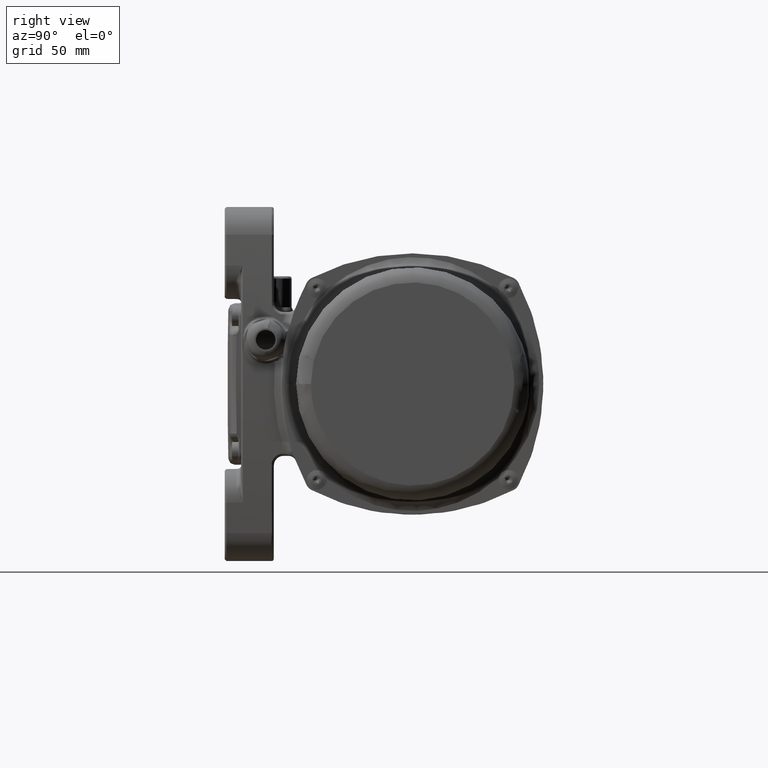
[diagram: clean part render]
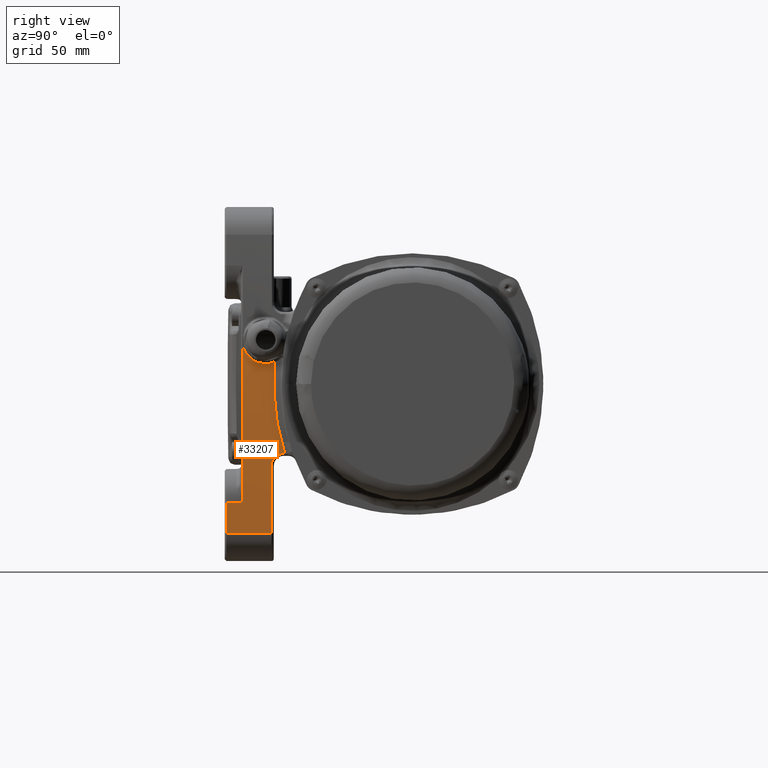
[diagram: same view with one face highlighted and labeled with its STEP entity id]
A machine part, right view. The second image highlights one B-rep face of the part: STEP entity #33207.
In plain terms, the highlighted cylindrical surface (partial cylindrical patch) has radius 1177.39 mm, axis along (-0, -1, -0).
Its self-contained STEP definition (entity closure, byte-faithful):
#73 = ORIENTED_EDGE ( 'NONE', *, *, #29983, .T. ) ;
#565 = CARTESIAN_POINT ( 'NONE',  ( 71.97014569181622800, 30.25408934805045600, -8.948182707814032400 ) ) ;
#570 = VERTEX_POINT ( 'NONE', #26577 ) ;
#681 = ORIENTED_EDGE ( 'NONE', *, *, #11822, .T. ) ;
#1027 = CARTESIAN_POINT ( 'NONE',  ( 71.20637620828320300, 32.89726016403100300, -43.22259752297990300 ) ) ;
#1286 = LINE ( 'NONE', #93497, #43908 ) ;
#1430 = CARTESIAN_POINT ( 'NONE',  ( 71.92334498826373600, 30.19751902385517900, 13.43656176734002000 ) ) ;
#2672 = CARTESIAN_POINT ( 'NONE',  ( 71.89894971271012000, 30.86275980810307500, -15.42813666770175700 ) ) ;
#3238 = CARTESIAN_POINT ( 'NONE',  ( 71.12097451912690400, 30.03169329687185000, -45.48967643393429900 ) ) ;
#3456 = AXIS2_PLACEMENT_3D ( 'NONE', #26343, #118518, #41360 ) ;
#3750 = CARTESIAN_POINT ( 'NONE',  ( 71.89267199621946200, 15.63158721638652300, 15.90046217338786300 ) ) ;
#4894 = CARTESIAN_POINT ( 'NONE',  ( 71.99933484515870000, 30.00566129381051200, -1.260244012328713500 ) ) ;
#5620 = DIRECTION ( 'NONE',  ( 1.942890293094024900E-016, 1.000000000000000000, 2.651940049159189700E-017 ) ) ;
#5864 = CARTESIAN_POINT ( 'NONE',  ( 71.92671559141999200, 20.56688521544164800, 13.13862833114919800 ) ) ;
#6391 = B_SPLINE_CURVE_WITH_KNOTS ( 'NONE', 3,
 ( #64855, #60582, #56362, #47767, #43561, #88460, #116341, #69153, #101327, #73475, #30609, #32809, #39195, #2672, #107828, #13455, #565, #77693, #120688, #105619, #4894, #84219, #131429, #62765, #129235, #15655 ),
 .UNSPECIFIED., .F., .F.,
 ( 4, 1, 1, 1, 2, 2, 1, 1, 1, 2, 2, 1, 1, 1, 1, 2, 2, 4 ),
 ( 0.0000000000000000000, 0.1250000000000004700, 0.1875000000000008300, 0.2187500000000008300, 0.2343750000000007800, 0.2500000000000007200, 0.3750000000000004400, 0.4375000000000002800, 0.4687500000000001700, 0.4843750000000001100, 0.5000000000000000000, 0.6250000000000001100, 0.6875000000000001100, 0.7187500000000001100, 0.7343750000000001100, 0.7421875000000001100, 0.7500000000000001100, 1.000000000000000000 ),
 .UNSPECIFIED. ) ;
#9668 = CARTESIAN_POINT ( 'NONE',  ( 70.97665896751969700, 28.54851451595179800, -49.08087049549579500 ) ) ;
#11822 = EDGE_CURVE ( 'NONE', #15925, #125845, #54744, .T. ) ;
#13455 = CARTESIAN_POINT ( 'NONE',  ( 71.93614411651022100, 30.54434556485648500, -12.48644543022362700 ) ) ;
#14015 = CARTESIAN_POINT ( 'NONE',  ( 71.18921465286288700, 32.03064530407679900, -43.68738105284980100 ) ) ;
#15184 = CARTESIAN_POINT ( 'NONE',  ( -1105.392857142863900, 10.99999999999974100, 5.794760148823299900E-014 ) ) ;
#15655 = CARTESIAN_POINT ( 'NONE',  ( 71.92100112256261500, 30.67403901402375200, 13.63888838288362100 ) ) ;
#15925 = VERTEX_POINT ( 'NONE', #78978 ) ;
#15994 = EDGE_CURVE ( 'NONE', #125845, #72918, #59569, .T. ) ;
#16416 = EDGE_CURVE ( 'NONE', #45019, #27990, #6391, .T. ) ;
#16498 = CARTESIAN_POINT ( 'NONE',  ( 71.93175029653478700, 22.58284795750611500, 12.67727615283605000 ) ) ;
#18058 = LINE ( 'NONE', #52271, #26866 ) ;
#18726 = CARTESIAN_POINT ( 'NONE',  ( 71.85399532308365200, 13.19060541332916800, 18.54652633090744400 ) ) ;
#19306 = DIRECTION ( 'NONE',  ( 1.942890293094024900E-016, 1.000000000000000000, 2.651940049159189700E-017 ) ) ;
#19313 = VERTEX_POINT ( 'NONE', #33896 ) ;
#20443 = CARTESIAN_POINT ( 'NONE',  ( 69.76031444216370400, 30.00000000000000000, -72.58762542394399000 ) ) ;
#20916 = CARTESIAN_POINT ( 'NONE',  ( 71.93073421754361600, 22.07828818048603000, 12.77169679114073000 ) ) ;
#22646 = CARTESIAN_POINT ( 'NONE',  ( 71.92100112256261500, 30.67403901402375200, 13.63888838288362100 ) ) ;
#23025 = CARTESIAN_POINT ( 'NONE',  ( 71.88806010398450000, 15.24446272387057300, 16.23916341736295600 ) ) ;
#23778 = DIRECTION ( 'NONE',  ( 1.942890293094024900E-016, 1.000000000000000000, 2.651940049159189700E-017 ) ) ;
#26191 = VERTEX_POINT ( 'NONE', #35995 ) ;
#26343 = CARTESIAN_POINT ( 'NONE',  ( -1105.392857142863900, 30.00000000000000000, 5.845147009757330300E-014 ) ) ;
#26577 = CARTESIAN_POINT ( 'NONE',  ( 70.93514042025650200, 28.50000000000000000, -50.06378132118450000 ) ) ;
#26866 = VECTOR ( 'NONE', #39472, 1000.000000000000000 ) ;
#27990 = VERTEX_POINT ( 'NONE', #22646 ) ;
#28958 = CARTESIAN_POINT ( 'NONE',  ( 71.21325191434269200, 33.34822016884989900, -43.03502048798829800 ) ) ;
#29983 = EDGE_CURVE ( 'NONE', #72918, #19313, #1286, .T. ) ;
#30249 = B_SPLINE_CURVE_WITH_KNOTS ( 'NONE', 3,
 ( #58941, #103988, #86784, #129795, #44019, #50433, #28958, #1027, #76025, #35383, #14015, #88927, #95454, #67510, #3238, #110410, #114703, #52538, #48241, #56819, #78257, #9668, #108303, #89014 ),
 .UNSPECIFIED., .F., .F.,
 ( 4, 2, 2, 2, 2, 2, 2, 2, 2, 2, 2, 4 ),
 ( 0.0000000000000000000, 0.1249999999999998300, 0.1874999999999989500, 0.2499999999999995300, 0.3124999999999993900, 0.3749999999999993300, 0.4999999999999991100, 0.6249999999999997800, 0.7499999999999995600, 0.8124999999999998900, 0.8749999999999998900, 1.000000000000000000 ),
 .UNSPECIFIED. ) ;
#30609 = CARTESIAN_POINT ( 'NONE',  ( 71.84868283213079100, 31.29369412691335100, -18.93903565899990600 ) ) ;
#31492 = EDGE_CURVE ( 'NONE', #27990, #26191, #46537, .T. ) ;
#32330 = ORIENTED_EDGE ( 'NONE', *, *, #65559, .F. ) ;
#32809 = CARTESIAN_POINT ( 'NONE',  ( 71.87906728439152500, 31.03309167548489000, -16.89247913098931500 ) ) ;
#33207 = ADVANCED_FACE ( 'NONE', ( #39140 ), #84168, .T. ) ;
#33896 = CARTESIAN_POINT ( 'NONE',  ( 68.44412770809570600, 28.50000000000000000, -91.43671607753690000 ) ) ;
#35383 = CARTESIAN_POINT ( 'NONE',  ( 71.19395786379661200, 32.24356121361150000, -43.55938792297620000 ) ) ;
#35995 = CARTESIAN_POINT ( 'NONE',  ( 71.77149304903640800, 10.99999999999986100, 23.19553164549699900 ) ) ;
#36457 = CARTESIAN_POINT ( 'NONE',  ( -1105.392857142863900, 0.9999999999997649700, 5.768240748331709300E-014 ) ) ;
#39140 = FACE_OUTER_BOUND ( 'NONE', #82583, .T. ) ;
#39195 = CARTESIAN_POINT ( 'NONE',  ( 71.89112561343617400, 30.92977636158888900, -16.01405119772174100 ) ) ;
#39472 = DIRECTION ( 'NONE',  ( 1.942890293094024900E-016, 1.000000000000000000, 2.651940049159189700E-017 ) ) ;
#40050 = CARTESIAN_POINT ( 'NONE',  ( 71.93383248676993000, 24.88956693550059300, 12.48222655152623900 ) ) ;
#40947 = EDGE_CURVE ( 'NONE', #26191, #15925, #84401, .T. ) ;
#41360 = DIRECTION ( 'NONE',  ( 1.885900730397318900E-016, -1.178687956498324300E-017, -1.000000000000000000 ) ) ;
#42966 = DIRECTION ( 'NONE',  ( 1.885900730397318900E-016, -1.141853957857751600E-017, -1.000000000000000000 ) ) ;
#43015 = EDGE_CURVE ( 'NONE', #99993, #45019, #18058, .T. ) ;
#43561 = CARTESIAN_POINT ( 'NONE',  ( 71.59645852602641000, 33.47754889351416100, -30.83306158127772900 ) ) ;
#43908 = VECTOR ( 'NONE', #5620, 1000.000000000000000 ) ;
#44019 = CARTESIAN_POINT ( 'NONE',  ( 71.22149439828119500, 34.04737977113664700, -42.80902864127369900 ) ) ;
#44056 = AXIS2_PLACEMENT_3D ( 'NONE', #127562, #103959, #54575 ) ;
#45019 = VERTEX_POINT ( 'NONE', #75029 ) ;
#46515 = CARTESIAN_POINT ( 'NONE',  ( 71.93000782925520300, 28.22913391242043300, 12.83826795471279100 ) ) ;
#46537 = B_SPLINE_CURVE_WITH_KNOTS ( 'NONE', 3,
 ( #59328, #1430, #76415, #74319, #46515, #121535, #63612, #80739, #97961, #40050, #115101, #57245, #16498, #20916, #5864, #128086, #46617, #50932, #80841, #74419, #108794, #3750, #23025, #61609, #72204, #59430, #18726, #119539, #76517, #113122, #130187, #113023 ),
 .UNSPECIFIED., .F., .F.,
 ( 4, 2, 2, 1, 2, 2, 2, 2, 2, 1, 2, 2, 2, 2, 2, 2, 4 ),
 ( 0.0000000000000000000, 0.06249999999999966700, 0.1249999999999993300, 0.1874999999999990000, 0.2187499999999990300, 0.2499999999999990600, 0.3124999999999991100, 0.3749999999999991700, 0.4999999999999993300, 0.5624999999999993300, 0.5937499999999994400, 0.6249999999999996700, 0.6874999999999997800, 0.7499999999999998900, 0.8125000000000000000, 0.8750000000000001100, 1.000000000000000000 ),
 .UNSPECIFIED. ) ;
#46617 = CARTESIAN_POINT ( 'NONE',  ( 71.91478932628811500, 18.19627854441752000, 14.16675433164661300 ) ) ;
#47767 = CARTESIAN_POINT ( 'NONE',  ( 71.54248643781305400, 33.94892435450365300, -32.85528861955506100 ) ) ;
#48241 = CARTESIAN_POINT ( 'NONE',  ( 71.03530362078041100, 28.89282848984050000, -47.65268353418079500 ) ) ;
#50433 = CARTESIAN_POINT ( 'NONE',  ( 71.21627488452460900, 33.57822007904955100, -42.95224808498744600 ) ) ;
#50932 = CARTESIAN_POINT ( 'NONE',  ( 71.91025163276512400, 17.51801549555255700, 14.54178824895765800 ) ) ;
#52271 = CARTESIAN_POINT ( 'NONE',  ( 71.23073556272569800, 30.00000000000000000, -42.55421412300680100 ) ) ;
#52538 = CARTESIAN_POINT ( 'NONE',  ( 71.04476934750290700, 28.97646876200144900, -47.41837974202209700 ) ) ;
#54575 = DIRECTION ( 'NONE',  ( -1.885900730397318900E-016, 1.178687956498324300E-017, 1.000000000000000000 ) ) ;
#54622 = VECTOR ( 'NONE', #112647, 1000.000000000000000 ) ;
#54744 = LINE ( 'NONE', #20443, #54622 ) ;
#56362 = CARTESIAN_POINT ( 'NONE',  ( 71.42618963394664900, 34.96915306916750400, -36.87936869417748700 ) ) ;
#56819 = CARTESIAN_POINT ( 'NONE',  ( 71.01611642795859300, 28.75034930032909800, -48.12403336986199800 ) ) ;
#57160 = AXIS2_PLACEMENT_3D ( 'NONE', #36457, #19306, #42966 ) ;
#57245 = CARTESIAN_POINT ( 'NONE',  ( 71.93319703508390700, 23.60178749196716900, 12.54219943922729600 ) ) ;
#58102 = ORIENTED_EDGE ( 'NONE', *, *, #92422, .F. ) ;
#58941 = CARTESIAN_POINT ( 'NONE',  ( 71.23073556272569800, 36.00000000000000000, -42.55421412300680100 ) ) ;
#59328 = CARTESIAN_POINT ( 'NONE',  ( 71.92100112256261500, 30.67403901402375200, 13.63888838288362100 ) ) ;
#59430 = CARTESIAN_POINT ( 'NONE',  ( 71.86044851108278000, 13.49866985695645200, 18.13157665252340700 ) ) ;
#59569 = CIRCLE ( 'NONE', #57160, 1177.392857142863900 ) ;
#60582 = CARTESIAN_POINT ( 'NONE',  ( 71.31249316946741600, 35.97645389776759100, -40.29361711850660300 ) ) ;
#61609 = CARTESIAN_POINT ( 'NONE',  ( 71.87795385708899700, 14.50846360047754900, 16.95600511882860700 ) ) ;
#62765 = CARTESIAN_POINT ( 'NONE',  ( 72.00252237478135000, 29.97850891093240100, 4.111768005665227000 ) ) ;
#63612 = CARTESIAN_POINT ( 'NONE',  ( 71.93322671803612400, 26.44080332956320200, 12.53929311641664600 ) ) ;
#64488 = DIRECTION ( 'NONE',  ( 1.885900730397318900E-016, -1.178687956498324300E-017, -1.000000000000000000 ) ) ;
#64855 = CARTESIAN_POINT ( 'NONE',  ( 71.23073556272569800, 36.70701848268949900, -42.55421412300680100 ) ) ;
#65559 = EDGE_CURVE ( 'NONE', #570, #19313, #67771, .T. ) ;
#67510 = CARTESIAN_POINT ( 'NONE',  ( 71.13583444504729400, 30.34806263771514900, -45.10319410281150000 ) ) ;
#67771 = CIRCLE ( 'NONE', #44056, 1177.392857142863900 ) ;
#69153 = CARTESIAN_POINT ( 'NONE',  ( 71.64055228922990200, 33.09341247683550300, -29.09254912920156900 ) ) ;
#72204 = CARTESIAN_POINT ( 'NONE',  ( 71.87248530306101200, 14.16100868212928900, 17.33243262586898200 ) ) ;
#72918 = VERTEX_POINT ( 'NONE', #110954 ) ;
#73475 = CARTESIAN_POINT ( 'NONE',  ( 71.77897572534561700, 31.89303257245474700, -23.01970131081866100 ) ) ;
#73673 = ORIENTED_EDGE ( 'NONE', *, *, #31492, .T. ) ;
#74319 = CARTESIAN_POINT ( 'NONE',  ( 71.92866545019114700, 28.72807205100053800, 12.96128414941099800 ) ) ;
#74419 = CARTESIAN_POINT ( 'NONE',  ( 71.90102598965434300, 16.44976971372486900, 15.26678924592033900 ) ) ;
#75029 = CARTESIAN_POINT ( 'NONE',  ( 71.23073556272569800, 36.70701848268949900, -42.55421412300680100 ) ) ;
#76025 = CARTESIAN_POINT ( 'NONE',  ( 71.20252350285690600, 32.67630001880880300, -43.32740203258460100 ) ) ;
#76415 = CARTESIAN_POINT ( 'NONE',  ( 71.92533246728017100, 29.71302163321683700, 13.26057542960039200 ) ) ;
#76517 = CARTESIAN_POINT ( 'NONE',  ( 71.83268240570167500, 12.35826077316566600, 19.85398514255328500 ) ) ;
#77693 = CARTESIAN_POINT ( 'NONE',  ( 71.99121037240937000, 30.07475267094830300, -4.811109001732974700 ) ) ;
#78257 = CARTESIAN_POINT ( 'NONE',  ( 71.00636887872369100, 28.69109926012160000, -48.36174753542100300 ) ) ;
#78978 = CARTESIAN_POINT ( 'NONE',  ( 69.76031444216360500, 10.99999999999986100, -72.58762542394380500 ) ) ;
#80739 = CARTESIAN_POINT ( 'NONE',  ( 71.93367641918276000, 25.66706829900103400, 12.49693858093330200 ) ) ;
#80841 = CARTESIAN_POINT ( 'NONE',  ( 71.90484062851577100, 16.87267795824789800, 14.96973404346490700 ) ) ;
#82322 = ORIENTED_EDGE ( 'NONE', *, *, #16416, .T. ) ;
#82583 = EDGE_LOOP ( 'NONE', ( #73673, #125124, #681, #120720, #73, #32330, #58102, #129719, #82322 ) ) ;
#84168 = CYLINDRICAL_SURFACE ( 'NONE', #3456, 1177.392857142863900 ) ;
#84219 = CARTESIAN_POINT ( 'NONE',  ( 71.99961454564936500, 30.00328159862594600, -0.9641475741816698500 ) ) ;
#84401 = CIRCLE ( 'NONE', #94281, 1177.392857142863900 ) ;
#86784 = CARTESIAN_POINT ( 'NONE',  ( 71.22897828657970400, 35.01457394379024600, -42.60288562572855400 ) ) ;
#88460 = CARTESIAN_POINT ( 'NONE',  ( 71.61868493197623300, 33.28383203087774000, -29.96421107582073200 ) ) ;
#88927 = CARTESIAN_POINT ( 'NONE',  ( 71.17386995611030900, 31.41644336345179800, -44.09934543763105100 ) ) ;
#89014 = CARTESIAN_POINT ( 'NONE',  ( 70.93514042025650200, 28.50000000000000000, -50.06378132118450000 ) ) ;
#89026 = CARTESIAN_POINT ( 'NONE',  ( 71.23073556272569800, 36.00000000000000000, -42.55421412300680100 ) ) ;
#92422 = EDGE_CURVE ( 'NONE', #99993, #570, #30249, .T. ) ;
#93497 = CARTESIAN_POINT ( 'NONE',  ( 68.44412770809559300, 30.00000000000000000, -91.43671607753709900 ) ) ;
#94281 = AXIS2_PLACEMENT_3D ( 'NONE', #15184, #23778, #64488 ) ;
#95454 = CARTESIAN_POINT ( 'NONE',  ( 71.16219251492879000, 31.03927654815805000, -44.41030705351275300 ) ) ;
#97961 = CARTESIAN_POINT ( 'NONE',  ( 71.93382953277330200, 25.15006900356041800, 12.48250553721395000 ) ) ;
#99993 = VERTEX_POINT ( 'NONE', #89026 ) ;
#101327 = CARTESIAN_POINT ( 'NONE',  ( 71.70409316076185700, 32.54069445609217600, -26.49603286795737800 ) ) ;
#102663 = CARTESIAN_POINT ( 'NONE',  ( 69.76031444216360500, 0.9999999999999039700, -72.58762542394389100 ) ) ;
#103959 = DIRECTION ( 'NONE',  ( 1.942890293094024900E-016, 1.000000000000000000, 2.651940049159189700E-017 ) ) ;
#103988 = CARTESIAN_POINT ( 'NONE',  ( 71.23073556269029900, 35.50461118586400000, -42.55421412397880200 ) ) ;
#105619 = CARTESIAN_POINT ( 'NONE',  ( 71.99883156051308200, 30.00994197755090200, -1.704348512362526600 ) ) ;
#107828 = CARTESIAN_POINT ( 'NONE',  ( 71.90273970094911200, 30.83030725996308900, -15.13619496853989500 ) ) ;
#108303 = CARTESIAN_POINT ( 'NONE',  ( 70.95623073048659500, 28.50000000148135000, -49.56823101023430000 ) ) ;
#108794 = CARTESIAN_POINT ( 'NONE',  ( 71.89900458374640400, 16.24096135138962900, 15.42199095364019200 ) ) ;
#110410 = CARTESIAN_POINT ( 'NONE',  ( 71.08914201156459000, 29.48830345308169900, -46.30564133712599800 ) ) ;
#110954 = CARTESIAN_POINT ( 'NONE',  ( 68.44412770809570600, 0.9999999999999310600, -91.43671607753709900 ) ) ;
#112647 = DIRECTION ( 'NONE',  ( -1.942890293094024900E-016, -1.000000000000000000, -2.651940049159189700E-017 ) ) ;
#113023 = CARTESIAN_POINT ( 'NONE',  ( 71.77149304903640800, 10.99999999999986100, 23.19553164549699900 ) ) ;
#113122 = CARTESIAN_POINT ( 'NONE',  ( 71.80887052125065400, 11.64372571827027300, 21.23391149371404300 ) ) ;
#114703 = CARTESIAN_POINT ( 'NONE',  ( 71.07211208627890600, 29.25831779962840100, -46.73674210031909800 ) ) ;
#115101 = CARTESIAN_POINT ( 'NONE',  ( 71.93362401547852900, 24.11478351556197100, 12.50187929988683800 ) ) ;
#116341 = CARTESIAN_POINT ( 'NONE',  ( 71.63330047289103700, 33.15653216513642600, -29.38449269736408100 ) ) ;
#118518 = DIRECTION ( 'NONE',  ( -1.942890293094024900E-016, -1.000000000000000000, -2.651940049159189700E-017 ) ) ;
#119539 = CARTESIAN_POINT ( 'NONE',  ( 71.84012178778401400, 12.62068646399282900, 19.40717903241527500 ) ) ;
#120688 = CARTESIAN_POINT ( 'NONE',  ( 71.99707141001543700, 30.02490822635677900, -2.740311024676896200 ) ) ;
#120720 = ORIENTED_EDGE ( 'NONE', *, *, #15994, .T. ) ;
#121535 = CARTESIAN_POINT ( 'NONE',  ( 71.93211276969243800, 27.20924662232916400, 12.64376251888443600 ) ) ;
#125124 = ORIENTED_EDGE ( 'NONE', *, *, #40947, .T. ) ;
#125845 = VERTEX_POINT ( 'NONE', #102663 ) ;
#127562 = CARTESIAN_POINT ( 'NONE',  ( -1105.392857142863900, 28.50000000000000000, 5.841169099683590300E-014 ) ) ;
#128086 = CARTESIAN_POINT ( 'NONE',  ( 71.92283532226571200, 19.59670532422786200, 13.48723746179443200 ) ) ;
#129235 = CARTESIAN_POINT ( 'NONE',  ( 71.97612176371974600, 30.20265090080531700, 8.880851111558381900 ) ) ;
#129719 = ORIENTED_EDGE ( 'NONE', *, *, #43015, .T. ) ;
#129795 = CARTESIAN_POINT ( 'NONE',  ( 71.22369788276749600, 34.28757768696910100, -42.74838998301605400 ) ) ;
#130187 = CARTESIAN_POINT ( 'NONE',  ( 71.79121918154052700, 11.27036491109223500, 22.19443797341978100 ) ) ;
#131429 = CARTESIAN_POINT ( 'NONE',  ( 71.99972575092432700, 30.00233504857597200, -0.8173790829619881300 ) ) ;